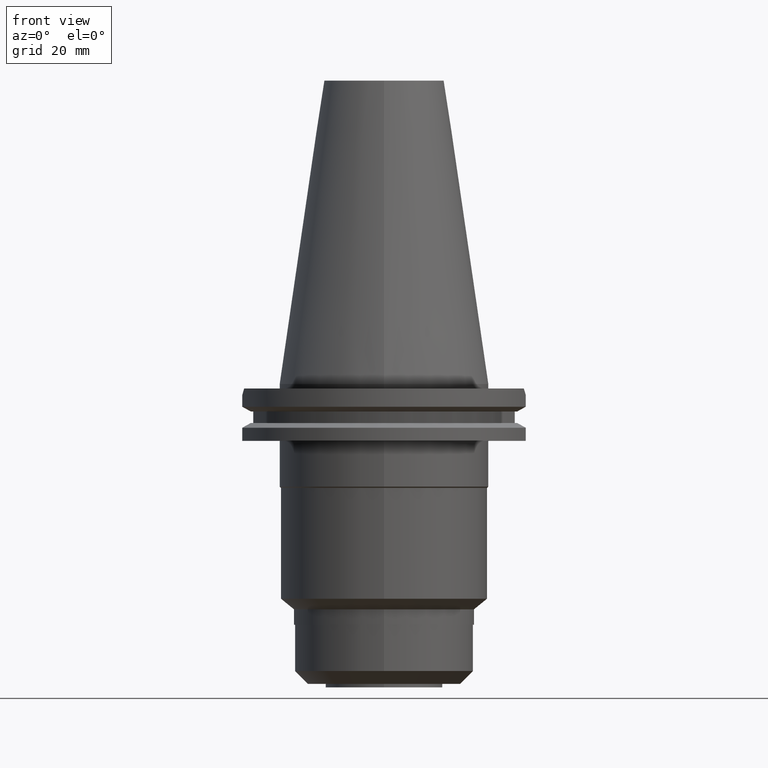
[diagram: clean part render]
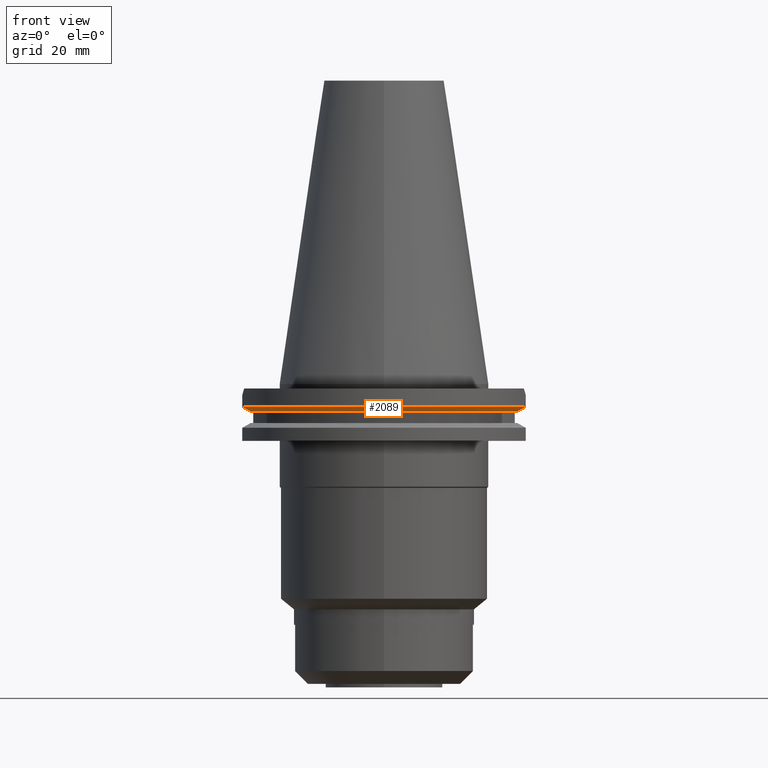
[diagram: same view with one face highlighted and labeled with its STEP entity id]
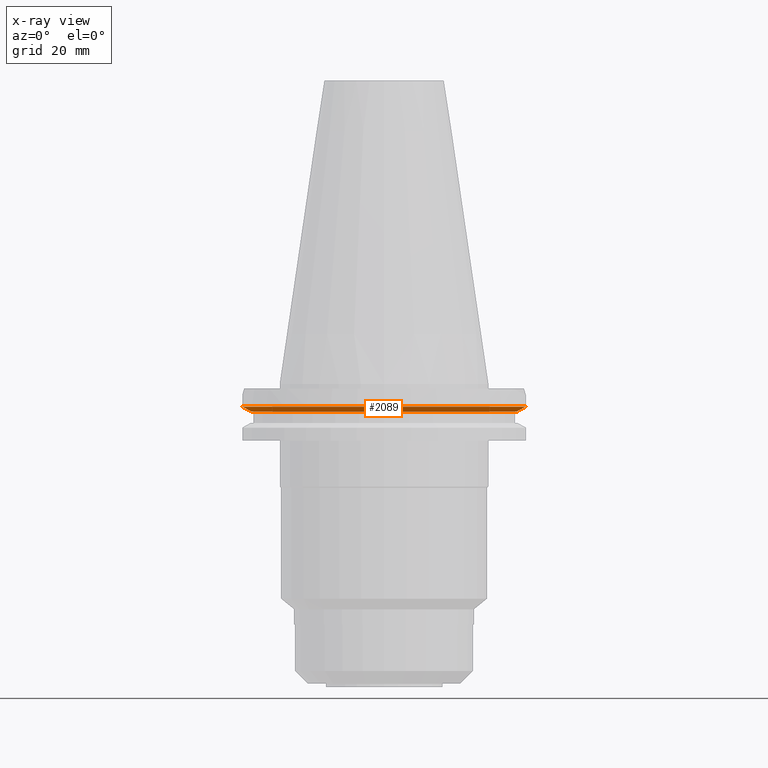
[diagram: x-ray of the same camera — body ghosted, the highlighted face saturated]
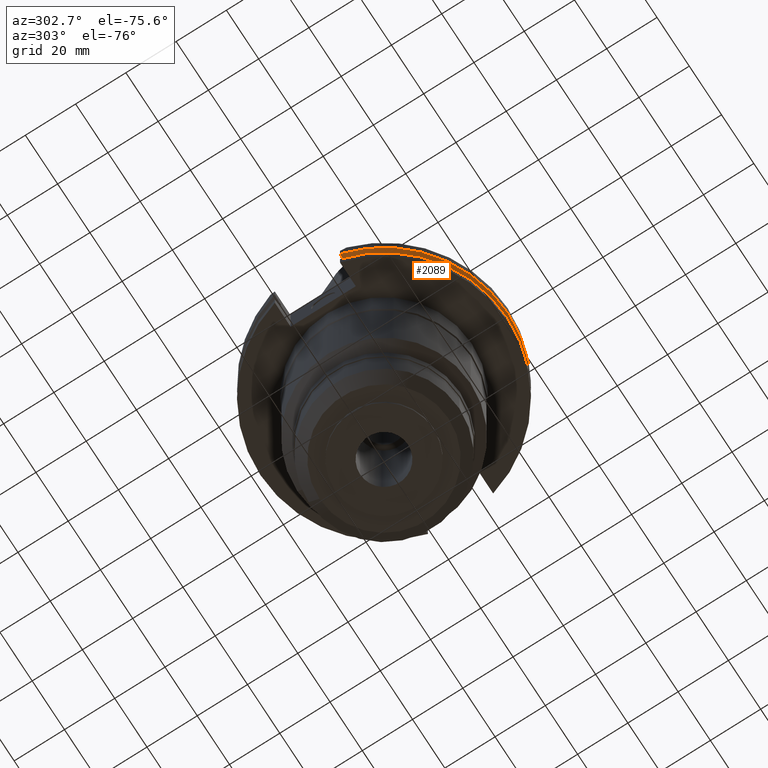
[diagram: same view with one face highlighted and labeled with its STEP entity id]
A machine part, front view. The second image highlights one B-rep face of the part: STEP entity #2089.
The next image is the same camera in x-ray: the body ghosted, the highlighted face saturated — about 0% of this face is hidden behind the body in this view.
A second angle (auxiliary view) of the same face is appended — the face is thin or edge-on in the first view.
In plain terms, the highlighted conical surface has half-angle 60 deg.
Its self-contained STEP definition (entity closure, byte-faithful):
#654=CARTESIAN_POINT('',(4.747671146204E1,-1.2955E1,-7.601333230925E0));
#655=CARTESIAN_POINT('',(4.715593427836E1,-1.2955E1,-7.780001752708E0));
#656=CARTESIAN_POINT('',(4.651414584905E1,-1.2955E1,-8.137199213220E0));
#657=CARTESIAN_POINT('',(4.555077636708E1,-1.2955E1,-8.672605903580E0));
#658=CARTESIAN_POINT('',(4.490806163991E1,-1.2955E1,-9.029261766987E0));
#659=CARTESIAN_POINT('',(4.458657636813E1,-1.2955E1,-9.207500000001E0));
#664=CARTESIAN_POINT('',(-4.458657636813E1,-1.2955E1,-9.207500000001E0));
#665=CARTESIAN_POINT('',(-4.490806163993E1,-1.2955E1,-9.029261766981E0));
#666=CARTESIAN_POINT('',(-4.555077636711E1,-1.2955E1,-8.672605903565E0));
#667=CARTESIAN_POINT('',(-4.651414584908E1,-1.2955E1,-8.137199213205E0));
#668=CARTESIAN_POINT('',(-4.715593427838E1,-1.2955E1,-7.780001752701E0));
#669=CARTESIAN_POINT('',(-4.747671146204E1,-1.2955E1,-7.601333230925E0));
#674=CARTESIAN_POINT('',(0.E0,1.121722380079E-14,-7.601333230926E0));
#675=DIRECTION('',(0.E0,0.E0,1.E0));
#676=DIRECTION('',(-9.647287063661E-1,-2.632461264923E-1,0.E0));
#677=AXIS2_PLACEMENT_3D('',#674,#675,#676);
#682=CARTESIAN_POINT('',(0.E0,1.121722380079E-14,-7.601333230926E0));
#683=DIRECTION('',(0.E0,0.E0,1.E0));
#684=DIRECTION('',(0.E0,-1.E0,0.E0));
#685=AXIS2_PLACEMENT_3D('',#682,#683,#684);
#713=CARTESIAN_POINT('',(0.E0,1.121722380079E-14,-9.207500000003E0));
#714=DIRECTION('',(0.E0,0.E0,1.E0));
#715=DIRECTION('',(-9.602855947900E-1,-2.790189535476E-1,0.E0));
#716=AXIS2_PLACEMENT_3D('',#713,#714,#715);
#721=CARTESIAN_POINT('',(0.E0,1.121722380079E-14,-9.207500000003E0));
#722=DIRECTION('',(0.E0,0.E0,1.E0));
#723=DIRECTION('',(0.E0,-1.E0,0.E0));
#724=AXIS2_PLACEMENT_3D('',#721,#722,#723);
#1491=CARTESIAN_POINT('',(4.458657636813E1,-1.2955E1,-9.207500000001E0));
#1492=VERTEX_POINT('',#1491);
#1493=VERTEX_POINT('',#654);
#1510=CARTESIAN_POINT('',(-4.747671146204E1,-1.2955E1,-7.601333230925E0));
#1511=VERTEX_POINT('',#1510);
#1512=VERTEX_POINT('',#664);
#1556=CARTESIAN_POINT('',(-3.687402563152E-14,-4.643053755053E1,
-9.207500000003E0));
#1557=VERTEX_POINT('',#1556);
#1562=CARTESIAN_POINT('',(0.E0,-4.92125E1,-7.601333230926E0));
#1563=VERTEX_POINT('',#1562);
#2074=CARTESIAN_POINT('',(0.E0,1.121722380079E-14,-8.404416615464E0));
#2075=DIRECTION('',(0.E0,0.E0,1.E0));
#2076=DIRECTION('',(0.E0,1.E0,0.E0));
#2077=AXIS2_PLACEMENT_3D('',#2074,#2075,#2076);
#2078=CONICAL_SURFACE('',#2077,4.782151877527E1,6.E1);
#2079=ORIENTED_EDGE('',*,*,#2026,.T.);
#2081=ORIENTED_EDGE('',*,*,#2080,.F.);
#2083=ORIENTED_EDGE('',*,*,#2082,.F.);
#2084=ORIENTED_EDGE('',*,*,#2060,.T.);
#2085=ORIENTED_EDGE('',*,*,#1987,.T.);
#2086=ORIENTED_EDGE('',*,*,#1985,.T.);
#2087=EDGE_LOOP('',(#2079,#2081,#2083,#2084,#2085,#2086));
#2088=FACE_OUTER_BOUND('',#2087,.F.);
#660=B_SPLINE_CURVE_WITH_KNOTS('',3,(#654,#655,#656,#657,#658,#659),
.UNSPECIFIED.,.F.,.F.,(4,1,1,4),(0.E0,3.333333333333E-1,6.666666666667E-1,1.E0),
.UNSPECIFIED.);
#670=B_SPLINE_CURVE_WITH_KNOTS('',3,(#664,#665,#666,#667,#668,#669),
.UNSPECIFIED.,.F.,.F.,(4,1,1,4),(0.E0,3.333333333333E-1,6.666666666667E-1,1.E0),
.UNSPECIFIED.);
#678=CIRCLE('',#677,4.92125E1);
#686=CIRCLE('',#685,4.92125E1);
#717=CIRCLE('',#716,4.643053755053E1);
#725=CIRCLE('',#724,4.643053755053E1);
#1985=EDGE_CURVE('',#1563,#1493,#686,.T.);
#1987=EDGE_CURVE('',#1511,#1563,#678,.T.);
#2026=EDGE_CURVE('',#1493,#1492,#660,.T.);
#2060=EDGE_CURVE('',#1512,#1511,#670,.T.);
#2080=EDGE_CURVE('',#1557,#1492,#725,.T.);
#2082=EDGE_CURVE('',#1512,#1557,#717,.T.);
#2089=ADVANCED_FACE('',(#2088),#2078,.T.);